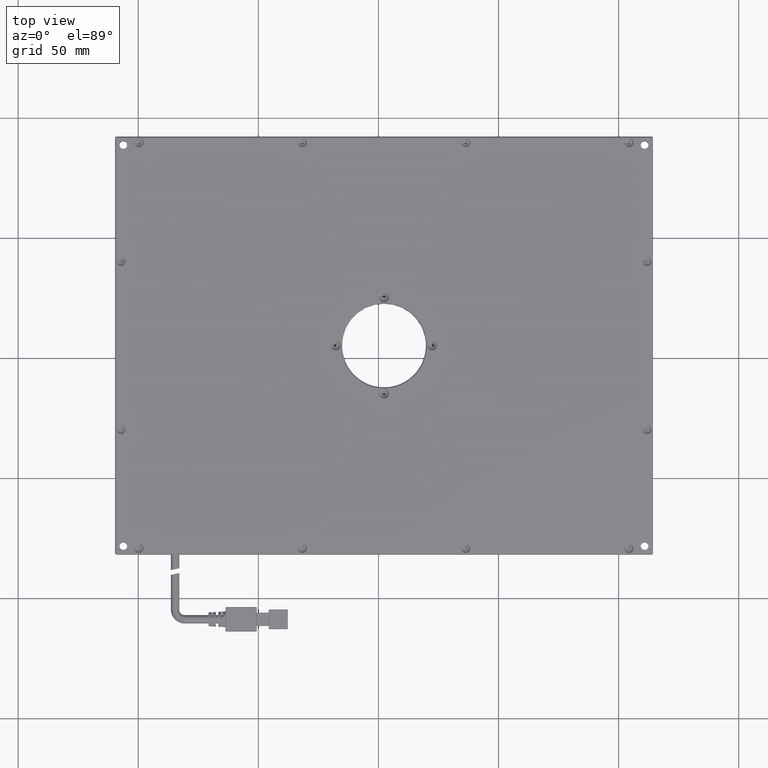
[diagram: clean part render]
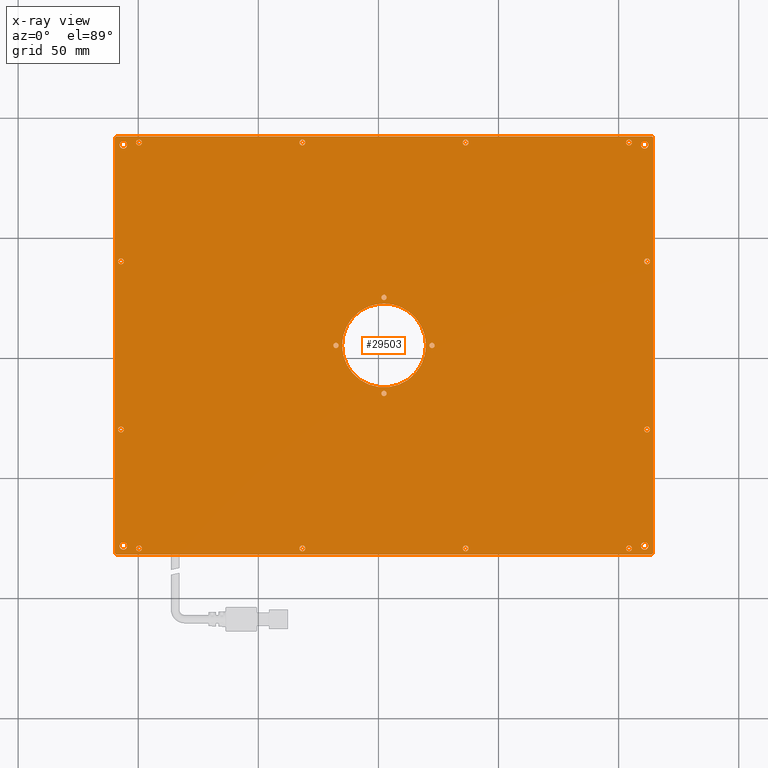
[diagram: x-ray — body ghosted, one internal face saturated and labeled with its STEP entity id]
A machine part, top view, then the same camera in x-ray: the body is ghosted and one INTERNAL B-rep face — a face not visible from any outside direction — is saturated and labeled: STEP entity #29503.
In plain terms, the highlighted planar face has unit normal (0, 0, -1).
Its self-contained STEP definition (entity closure, byte-faithful):
#163 = VERTEX_POINT ( 'NONE', #26431 ) ;
#206 = CIRCLE ( 'NONE', #48493, 1.099999999999999400 ) ;
#390 = DIRECTION ( 'NONE',  ( 1.000000000000000000, 0.0000000000000000000, 0.0000000000000000000 ) ) ;
#397 = AXIS2_PLACEMENT_3D ( 'NONE', #48713, #29498, #25098 ) ;
#575 = CARTESIAN_POINT ( 'NONE',  ( 113.8229746835443400, -81.80746835443041200, 3.749999999999999600 ) ) ;
#887 = EDGE_CURVE ( 'NONE', #19909, #38923, #32694, .T. ) ;
#960 = CARTESIAN_POINT ( 'NONE',  ( 103.1229746835443400, -79.30746835443037000, 3.750000000000000000 ) ) ;
#962 = CIRCLE ( 'NONE', #28000, 1.199999999999992600 ) ;
#1033 = EDGE_CURVE ( 'NONE', #40741, #43059, #33302, .T. ) ;
#1050 = VERTEX_POINT ( 'NONE', #21515 ) ;
#1183 = DIRECTION ( 'NONE',  ( -0.0000000000000000000, -0.0000000000000000000, 1.000000000000000000 ) ) ;
#1359 = CARTESIAN_POINT ( 'NONE',  ( 104.3229746835443300, -79.30746835443037000, 3.750000000000000000 ) ) ;
#1389 = DIRECTION ( 'NONE',  ( -0.0000000000000000000, -0.0000000000000000000, 1.000000000000000000 ) ) ;
#1589 = EDGE_LOOP ( 'NONE', ( #21733, #48932 ) ) ;
#1613 = CIRCLE ( 'NONE', #22118, 1.600000000000004100 ) ;
#1666 = EDGE_CURVE ( 'NONE', #5929, #17428, #49491, .T. ) ;
#1931 = EDGE_CURVE ( 'NONE', #27726, #45954, #962, .T. ) ;
#1974 = ORIENTED_EDGE ( 'NONE', *, *, #44714, .T. ) ;
#1994 = FACE_BOUND ( 'NONE', #25932, .T. ) ;
#1995 = CIRCLE ( 'NONE', #46303, 1.100000000000000300 ) ;
#2058 = DIRECTION ( 'NONE',  ( 1.000000000000000000, 0.0000000000000000000, 0.0000000000000000000 ) ) ;
#2193 = VERTEX_POINT ( 'NONE', #41320 ) ;
#2195 = ORIENTED_EDGE ( 'NONE', *, *, #33237, .T. ) ;
#2252 = CARTESIAN_POINT ( 'NONE',  ( 2.322974683544365400, 5.192531645569612700, 3.750000000000000000 ) ) ;
#2350 = CARTESIAN_POINT ( 'NONE',  ( -32.87702531645570000, 89.69253164556960200, 3.750000000000000000 ) ) ;
#2405 = ORIENTED_EDGE ( 'NONE', *, *, #4359, .T. ) ;
#2434 = LINE ( 'NONE', #41936, #31925 ) ;
#2563 = AXIS2_PLACEMENT_3D ( 'NONE', #14901, #22484, #22983 ) ;
#2993 = DIRECTION ( 'NONE',  ( 1.000000000000000000, 0.0000000000000000000, 0.0000000000000000000 ) ) ;
#3008 = CARTESIAN_POINT ( 'NONE',  ( 103.1229746835443300, 89.69253164556961600, 3.750000000000000000 ) ) ;
#3106 = EDGE_CURVE ( 'NONE', #34333, #16941, #31962, .T. ) ;
#3166 = DIRECTION ( 'NONE',  ( -0.0000000000000000000, -0.0000000000000000000, 1.000000000000000000 ) ) ;
#3233 = LINE ( 'NONE', #34661, #27262 ) ;
#3270 = AXIS2_PLACEMENT_3D ( 'NONE', #41819, #33556, #33708 ) ;
#3485 = VERTEX_POINT ( 'NONE', #41124 ) ;
#3565 = EDGE_LOOP ( 'NONE', ( #8888, #18016 ) ) ;
#3664 = VERTEX_POINT ( 'NONE', #10921 ) ;
#3721 = DIRECTION ( 'NONE',  ( 1.000000000000000000, 0.0000000000000000000, 0.0000000000000000000 ) ) ;
#3739 = CARTESIAN_POINT ( 'NONE',  ( 110.6229746835443100, 40.19253164556960200, 3.750000000000000000 ) ) ;
#3780 = AXIS2_PLACEMENT_3D ( 'NONE', #37957, #34385, #6799 ) ;
#3884 = EDGE_CURVE ( 'NONE', #32887, #42394, #13125, .T. ) ;
#4196 = DIRECTION ( 'NONE',  ( 1.000000000000000000, 0.0000000000000000000, 0.0000000000000000000 ) ) ;
#4359 = EDGE_CURVE ( 'NONE', #17428, #5929, #48655, .T. ) ;
#4415 = AXIS2_PLACEMENT_3D ( 'NONE', #17469, #21527, #44444 ) ;
#4421 = CARTESIAN_POINT ( 'NONE',  ( 105.5229746835443100, 89.69253164556961600, 3.750000000000000000 ) ) ;
#4699 = CARTESIAN_POINT ( 'NONE',  ( -106.1770253164556400, -78.30746835443039800, 3.750000000000000000 ) ) ;
#4711 = ORIENTED_EDGE ( 'NONE', *, *, #7439, .T. ) ;
#4735 = CARTESIAN_POINT ( 'NONE',  ( 111.8229746835443000, -29.80746835443040500, 3.750000000000000000 ) ) ;
#4752 = CARTESIAN_POINT ( 'NONE',  ( 110.8229746835443000, 88.69253164556958800, 3.750000000000000000 ) ) ;
#4934 = FACE_BOUND ( 'NONE', #1589, .T. ) ;
#5020 = DIRECTION ( 'NONE',  ( 1.000000000000000000, 0.0000000000000000000, 0.0000000000000000000 ) ) ;
#5172 = CARTESIAN_POINT ( 'NONE',  ( 3.422974683544323300, 25.19253164556961300, 3.750000000000000000 ) ) ;
#5285 = EDGE_CURVE ( 'NONE', #25036, #163, #1613, .T. ) ;
#5297 = EDGE_LOOP ( 'NONE', ( #35231, #35907 ) ) ;
#5401 = CARTESIAN_POINT ( 'NONE',  ( 111.8229746835443200, 40.19253164556960200, 3.750000000000000000 ) ) ;
#5462 = ORIENTED_EDGE ( 'NONE', *, *, #7531, .T. ) ;
#5540 = CIRCLE ( 'NONE', #33269, 1.600000000000004100 ) ;
#5547 = DIRECTION ( 'NONE',  ( 1.000000000000000000, 0.0000000000000000000, 0.0000000000000000000 ) ) ;
#5619 = VERTEX_POINT ( 'NONE', #26460 ) ;
#5929 = VERTEX_POINT ( 'NONE', #4421 ) ;
#5945 = CIRCLE ( 'NONE', #3780, 1.199999999999992600 ) ;
#5953 = AXIS2_PLACEMENT_3D ( 'NONE', #33732, #3166, #45878 ) ;
#6093 = ORIENTED_EDGE ( 'NONE', *, *, #47265, .T. ) ;
#6136 = VERTEX_POINT ( 'NONE', #20624 ) ;
#6380 = DIRECTION ( 'NONE',  ( -0.0000000000000000000, -0.0000000000000000000, 1.000000000000000000 ) ) ;
#6532 = VERTEX_POINT ( 'NONE', #48399 ) ;
#6596 = VERTEX_POINT ( 'NONE', #44341 ) ;
#6778 = DIRECTION ( 'NONE',  ( -0.0000000000000000000, -0.0000000000000000000, 1.000000000000000000 ) ) ;
#6799 = DIRECTION ( 'NONE',  ( 1.000000000000000000, 0.0000000000000000000, 0.0000000000000000000 ) ) ;
#6885 = EDGE_LOOP ( 'NONE', ( #42062, #33529 ) ) ;
#6915 = EDGE_CURVE ( 'NONE', #41964, #9405, #49402, .T. ) ;
#6941 = EDGE_CURVE ( 'NONE', #45954, #27726, #28877, .T. ) ;
#6998 = DIRECTION ( 'NONE',  ( 1.000000000000000000, 0.0000000000000000000, 0.0000000000000000000 ) ) ;
#7080 = DIRECTION ( 'NONE',  ( -0.7071067811865672200, 0.7071067811865279200, 0.0000000000000000000 ) ) ;
#7213 = CARTESIAN_POINT ( 'NONE',  ( -99.67702531645571200, 89.69253164556958800, 3.750000000000000000 ) ) ;
#7303 = LINE ( 'NONE', #45489, #48906 ) ;
#7330 = AXIS2_PLACEMENT_3D ( 'NONE', #47289, #1183, #24356 ) ;
#7350 = EDGE_LOOP ( 'NONE', ( #18623, #25750 ) ) ;
#7437 = ORIENTED_EDGE ( 'NONE', *, *, #11746, .T. ) ;
#7439 = EDGE_CURVE ( 'NONE', #6596, #6136, #3233, .T. ) ;
#7531 = EDGE_CURVE ( 'NONE', #29559, #28022, #47152, .T. ) ;
#7588 = CIRCLE ( 'NONE', #31833, 1.199999999999992600 ) ;
#7654 = CIRCLE ( 'NONE', #47383, 1.099999999999999400 ) ;
#7841 = EDGE_CURVE ( 'NONE', #30299, #23083, #5540, .T. ) ;
#7846 = VERTEX_POINT ( 'NONE', #45558 ) ;
#7903 = FACE_BOUND ( 'NONE', #8839, .T. ) ;
#7928 = AXIS2_PLACEMENT_3D ( 'NONE', #1359, #9691, #40084 ) ;
#8012 = AXIS2_PLACEMENT_3D ( 'NONE', #19991, #9516, #32615 ) ;
#8031 = AXIS2_PLACEMENT_3D ( 'NONE', #43029, #28008, #16414 ) ;
#8839 = EDGE_LOOP ( 'NONE', ( #19128, #40571 ) ) ;
#8888 = ORIENTED_EDGE ( 'NONE', *, *, #887, .T. ) ;
#8969 = CARTESIAN_POINT ( 'NONE',  ( -107.1770253164556700, 40.19253164556960200, 3.750000000000000000 ) ) ;
#9007 = CIRCLE ( 'NONE', #17657, 1.099999999999999400 ) ;
#9222 = DIRECTION ( 'NONE',  ( 1.000000000000000000, 0.0000000000000000000, 0.0000000000000000000 ) ) ;
#9245 = VERTEX_POINT ( 'NONE', #48398 ) ;
#9405 = VERTEX_POINT ( 'NONE', #38122 ) ;
#9477 = VERTEX_POINT ( 'NONE', #42319 ) ;
#9501 = CARTESIAN_POINT ( 'NONE',  ( -109.6770253164556800, 91.69253164556951700, 3.750000000000000000 ) ) ;
#9516 = DIRECTION ( 'NONE',  ( 0.0000000000000000000, 0.0000000000000000000, 1.000000000000000000 ) ) ;
#9664 = CARTESIAN_POINT ( 'NONE',  ( 1.222974683544324300, -14.80746835443041600, 3.750000000000000000 ) ) ;
#9691 = DIRECTION ( 'NONE',  ( -0.0000000000000000000, -0.0000000000000000000, 1.000000000000000000 ) ) ;
#9878 = DIRECTION ( 'NONE',  ( -0.0000000000000000000, -0.0000000000000000000, 1.000000000000000000 ) ) ;
#9887 = CARTESIAN_POINT ( 'NONE',  ( -30.47702531645569800, -79.30746835443038400, 3.750000000000000000 ) ) ;
#9950 = EDGE_CURVE ( 'NONE', #25500, #46503, #49858, .T. ) ;
#10296 = CARTESIAN_POINT ( 'NONE',  ( 114.3229746835443400, 5.192531645569598500, 3.750000000000000000 ) ) ;
#10365 = ORIENTED_EDGE ( 'NONE', *, *, #39117, .T. ) ;
#10408 = VERTEX_POINT ( 'NONE', #29221 ) ;
#10651 = CARTESIAN_POINT ( 'NONE',  ( 19.82297468354437000, 5.192531645569614400, 3.750000000000000000 ) ) ;
#10685 = CARTESIAN_POINT ( 'NONE',  ( -106.1770253164556400, -78.30746835443039800, 3.750000000000000000 ) ) ;
#10921 = CARTESIAN_POINT ( 'NONE',  ( 1.222974683544324300, 25.19253164556961300, 3.750000000000000000 ) ) ;
#10960 = FACE_BOUND ( 'NONE', #5297, .T. ) ;
#11012 = VERTEX_POINT ( 'NONE', #10651 ) ;
#11414 = VERTEX_POINT ( 'NONE', #575 ) ;
#11436 = CIRCLE ( 'NONE', #40985, 1.600000000000004100 ) ;
#11592 = AXIS2_PLACEMENT_3D ( 'NONE', #32983, #9878, #13775 ) ;
#11647 = AXIS2_PLACEMENT_3D ( 'NONE', #31028, #39125, #11811 ) ;
#11686 = DIRECTION ( 'NONE',  ( -0.0000000000000000000, -0.0000000000000000000, 1.000000000000000000 ) ) ;
#11746 = EDGE_CURVE ( 'NONE', #26974, #9477, #2434, .T. ) ;
#11811 = DIRECTION ( 'NONE',  ( 1.000000000000000000, 0.0000000000000000000, 0.0000000000000000000 ) ) ;
#11935 = DIRECTION ( 'NONE',  ( 1.000000000000000000, 0.0000000000000000000, 0.0000000000000000000 ) ) ;
#11955 = CARTESIAN_POINT ( 'NONE',  ( -109.1770253164556700, 92.19253164556960200, 3.749999999999999600 ) ) ;
#12011 = AXIS2_PLACEMENT_3D ( 'NONE', #17777, #29236, #21319 ) ;
#12215 = DIRECTION ( 'NONE',  ( -0.0000000000000000000, -0.0000000000000000000, 1.000000000000000000 ) ) ;
#12368 = EDGE_LOOP ( 'NONE', ( #15325, #2405 ) ) ;
#12482 = CARTESIAN_POINT ( 'NONE',  ( -105.9770253164556700, 40.19253164556960200, 3.750000000000000000 ) ) ;
#12580 = DIRECTION ( 'NONE',  ( 0.7071067811864985000, 0.7071067811865965300, 0.0000000000000000000 ) ) ;
#12585 = DIRECTION ( 'NONE',  ( 1.000000000000000000, 0.0000000000000000000, 0.0000000000000000000 ) ) ;
#12828 = CARTESIAN_POINT ( 'NONE',  ( -100.8770253164556900, -79.30746835443039800, 3.750000000000000000 ) ) ;
#13125 = CIRCLE ( 'NONE', #26528, 1.199999999999992600 ) ;
#13324 = AXIS2_PLACEMENT_3D ( 'NONE', #40524, #13694, #29357 ) ;
#13694 = DIRECTION ( 'NONE',  ( -0.0000000000000000000, -0.0000000000000000000, 1.000000000000000000 ) ) ;
#13775 = DIRECTION ( 'NONE',  ( 1.000000000000000000, 0.0000000000000000000, 0.0000000000000000000 ) ) ;
#13819 = CARTESIAN_POINT ( 'NONE',  ( -107.7770253164556500, -78.30746835443039800, 3.750000000000000000 ) ) ;
#13877 = EDGE_CURVE ( 'NONE', #17910, #5619, #35819, .T. ) ;
#13963 = FACE_BOUND ( 'NONE', #19888, .T. ) ;
#13978 = CARTESIAN_POINT ( 'NONE',  ( -30.47702531645571300, 89.69253164556960200, 3.750000000000000000 ) ) ;
#14001 = CIRCLE ( 'NONE', #21776, 1.099999999999999400 ) ;
#14021 = CARTESIAN_POINT ( 'NONE',  ( 105.5229746835443200, -79.30746835443037000, 3.750000000000000000 ) ) ;
#14124 = CIRCLE ( 'NONE', #3270, 1.100000000000000300 ) ;
#14268 = CARTESIAN_POINT ( 'NONE',  ( 114.3229746835443400, 91.69253164556960200, 3.749999999999999600 ) ) ;
#14273 = CARTESIAN_POINT ( 'NONE',  ( 109.2229746835443100, 88.69253164556958800, 3.750000000000000000 ) ) ;
#14536 = DIRECTION ( 'NONE',  ( 0.0000000000000000000, 0.0000000000000000000, -1.000000000000000000 ) ) ;
#14597 = ORIENTED_EDGE ( 'NONE', *, *, #40716, .T. ) ;
#14607 = FACE_BOUND ( 'NONE', #3565, .T. ) ;
#14699 = CARTESIAN_POINT ( 'NONE',  ( 110.6229746835443000, -29.80746835443040500, 3.750000000000000000 ) ) ;
#14901 = CARTESIAN_POINT ( 'NONE',  ( 104.3229746835443200, 89.69253164556961600, 3.750000000000000000 ) ) ;
#14912 = DIRECTION ( 'NONE',  ( -0.0000000000000000000, -0.0000000000000000000, 1.000000000000000000 ) ) ;
#15013 = ORIENTED_EDGE ( 'NONE', *, *, #3884, .T. ) ;
#15089 = CARTESIAN_POINT ( 'NONE',  ( -106.1770253164556600, 88.69253164556958800, 3.750000000000000000 ) ) ;
#15252 = DIRECTION ( 'NONE',  ( 1.000000000000000000, 0.0000000000000000000, 0.0000000000000000000 ) ) ;
#15325 = ORIENTED_EDGE ( 'NONE', *, *, #1666, .T. ) ;
#16027 = VECTOR ( 'NONE', #30746, 1000.000000000000000 ) ;
#16393 = CIRCLE ( 'NONE', #13324, 1.199999999999992600 ) ;
#16414 = DIRECTION ( 'NONE',  ( 1.000000000000000000, 0.0000000000000000000, 0.0000000000000000000 ) ) ;
#16941 = VERTEX_POINT ( 'NONE', #30453 ) ;
#17428 = VERTEX_POINT ( 'NONE', #3008 ) ;
#17469 = CARTESIAN_POINT ( 'NONE',  ( 36.32297468354429500, 89.69253164556960200, 3.750000000000000000 ) ) ;
#17657 = AXIS2_PLACEMENT_3D ( 'NONE', #41546, #37333, #37499 ) ;
#17689 = DIRECTION ( 'NONE',  ( 1.000000000000000000, 0.0000000000000000000, 0.0000000000000000000 ) ) ;
#17777 = CARTESIAN_POINT ( 'NONE',  ( -107.1770253164556600, -29.80746835443040500, 3.750000000000000000 ) ) ;
#17910 = VERTEX_POINT ( 'NONE', #18250 ) ;
#17917 = CARTESIAN_POINT ( 'NONE',  ( 22.32297468354433800, 5.192531645569809000, 3.750000000000000000 ) ) ;
#18016 = ORIENTED_EDGE ( 'NONE', *, *, #46624, .T. ) ;
#18033 = DIRECTION ( 'NONE',  ( -0.0000000000000000000, -0.0000000000000000000, 1.000000000000000000 ) ) ;
#18184 = FACE_BOUND ( 'NONE', #45949, .T. ) ;
#18231 = DIRECTION ( 'NONE',  ( 1.000000000000000000, 0.0000000000000000000, 0.0000000000000000000 ) ) ;
#18250 = CARTESIAN_POINT ( 'NONE',  ( 35.12297468354430700, 89.69253164556960200, 3.750000000000000000 ) ) ;
#18474 = ORIENTED_EDGE ( 'NONE', *, *, #43853, .T. ) ;
#18531 = AXIS2_PLACEMENT_3D ( 'NONE', #8969, #28526, #5020 ) ;
#18546 = AXIS2_PLACEMENT_3D ( 'NONE', #24920, #18033, #17689 ) ;
#18623 = ORIENTED_EDGE ( 'NONE', *, *, #6915, .T. ) ;
#18881 = CARTESIAN_POINT ( 'NONE',  ( -107.7770253164556600, 88.69253164556958800, 3.750000000000000000 ) ) ;
#18969 = CARTESIAN_POINT ( 'NONE',  ( 2.322974683544323700, -81.80746835443041200, 3.750000000000000000 ) ) ;
#19081 = DIRECTION ( 'NONE',  ( -0.0000000000000000000, -0.0000000000000000000, 1.000000000000000000 ) ) ;
#19128 = ORIENTED_EDGE ( 'NONE', *, *, #3106, .T. ) ;
#19543 = DIRECTION ( 'NONE',  ( -0.0000000000000000000, -0.0000000000000000000, 1.000000000000000000 ) ) ;
#19555 = CARTESIAN_POINT ( 'NONE',  ( 110.8229746835442900, -78.30746835443039800, 3.750000000000000000 ) ) ;
#19710 = AXIS2_PLACEMENT_3D ( 'NONE', #2252, #20868, #20699 ) ;
#19845 = DIRECTION ( 'NONE',  ( -0.0000000000000000000, -0.0000000000000000000, 1.000000000000000000 ) ) ;
#19888 = EDGE_LOOP ( 'NONE', ( #33212, #37264 ) ) ;
#19909 = VERTEX_POINT ( 'NONE', #14021 ) ;
#19951 = ORIENTED_EDGE ( 'NONE', *, *, #35033, .T. ) ;
#19991 = CARTESIAN_POINT ( 'NONE',  ( 2.322974683544365400, 5.192531645569612700, 3.750000000000000000 ) ) ;
#20013 = FACE_BOUND ( 'NONE', #32932, .T. ) ;
#20320 = CIRCLE ( 'NONE', #11592, 1.199999999999992600 ) ;
#20418 = CARTESIAN_POINT ( 'NONE',  ( -18.77702531645569200, 5.192531645569528300, 3.750000000000000000 ) ) ;
#20481 = DIRECTION ( 'NONE',  ( -0.7071067811865671100, -0.7071067811865279200, 0.0000000000000000000 ) ) ;
#20536 = CARTESIAN_POINT ( 'NONE',  ( 36.32297468354430900, -79.30746835443038400, 3.750000000000000000 ) ) ;
#20563 = FACE_BOUND ( 'NONE', #29105, .T. ) ;
#20624 = CARTESIAN_POINT ( 'NONE',  ( -109.6770253164556700, 91.69253164556953100, 3.749999999999999600 ) ) ;
#20699 = DIRECTION ( 'NONE',  ( -1.000000000000000000, 0.0000000000000000000, 0.0000000000000000000 ) ) ;
#20731 = DIRECTION ( 'NONE',  ( -0.0000000000000000000, -0.0000000000000000000, 1.000000000000000000 ) ) ;
#20863 = LINE ( 'NONE', #27221, #41975 ) ;
#20868 = DIRECTION ( 'NONE',  ( 0.0000000000000000000, 0.0000000000000000000, 1.000000000000000000 ) ) ;
#20950 = EDGE_CURVE ( 'NONE', #27391, #37448, #48840, .T. ) ;
#21148 = EDGE_CURVE ( 'NONE', #47424, #9245, #9007, .T. ) ;
#21184 = CARTESIAN_POINT ( 'NONE',  ( 2.322974683544323700, 25.19253164556961300, 3.750000000000000000 ) ) ;
#21232 = CIRCLE ( 'NONE', #19710, 17.50000000000000400 ) ;
#21319 = DIRECTION ( 'NONE',  ( 1.000000000000000000, 0.0000000000000000000, 0.0000000000000000000 ) ) ;
#21515 = CARTESIAN_POINT ( 'NONE',  ( 114.3229746835443400, -81.30746835443042600, 3.749999999999999600 ) ) ;
#21527 = DIRECTION ( 'NONE',  ( -0.0000000000000000000, -0.0000000000000000000, 1.000000000000000000 ) ) ;
#21570 = CARTESIAN_POINT ( 'NONE',  ( -32.87702531645568600, -79.30746835443038400, 3.750000000000000000 ) ) ;
#21631 = ORIENTED_EDGE ( 'NONE', *, *, #46117, .T. ) ;
#21707 = CARTESIAN_POINT ( 'NONE',  ( 113.0229746835443100, 40.19253164556960200, 3.750000000000000000 ) ) ;
#21733 = ORIENTED_EDGE ( 'NONE', *, *, #35365, .T. ) ;
#21776 = AXIS2_PLACEMENT_3D ( 'NONE', #22616, #19081, #41510 ) ;
#22032 = EDGE_LOOP ( 'NONE', ( #10365, #6093, #47061, #29596, #4711, #19951, #7437, #36068 ) ) ;
#22118 = AXIS2_PLACEMENT_3D ( 'NONE', #15089, #49790, #4196 ) ;
#22227 = DIRECTION ( 'NONE',  ( -0.0000000000000000000, -0.0000000000000000000, 1.000000000000000000 ) ) ;
#22431 = FACE_BOUND ( 'NONE', #45554, .T. ) ;
#22440 = EDGE_CURVE ( 'NONE', #2193, #26315, #40051, .T. ) ;
#22484 = DIRECTION ( 'NONE',  ( -0.0000000000000000000, -0.0000000000000000000, 1.000000000000000000 ) ) ;
#22616 = CARTESIAN_POINT ( 'NONE',  ( 2.322974683544323700, -14.80746835443041600, 3.750000000000000000 ) ) ;
#22820 = VECTOR ( 'NONE', #12580, 1000.000000000000000 ) ;
#22897 = ORIENTED_EDGE ( 'NONE', *, *, #30249, .T. ) ;
#22983 = DIRECTION ( 'NONE',  ( 1.000000000000000000, 0.0000000000000000000, 0.0000000000000000000 ) ) ;
#23021 = FACE_BOUND ( 'NONE', #26818, .T. ) ;
#23078 = CIRCLE ( 'NONE', #18531, 1.199999999999992600 ) ;
#23083 = VERTEX_POINT ( 'NONE', #13819 ) ;
#23276 = EDGE_CURVE ( 'NONE', #35818, #6596, #7303, .T. ) ;
#23357 = CARTESIAN_POINT ( 'NONE',  ( 113.8229746835442900, 92.19253164556963000, 3.750000000000000000 ) ) ;
#23457 = LINE ( 'NONE', #23357, #36102 ) ;
#23668 = DIRECTION ( 'NONE',  ( -0.0000000000000000000, -0.0000000000000000000, 1.000000000000000000 ) ) ;
#23817 = CIRCLE ( 'NONE', #8012, 17.50000000000000400 ) ;
#23914 = AXIS2_PLACEMENT_3D ( 'NONE', #7213, #49353, #49517 ) ;
#24204 = FACE_BOUND ( 'NONE', #42834, .T. ) ;
#24205 = CIRCLE ( 'NONE', #5953, 1.199999999999992600 ) ;
#24277 = EDGE_CURVE ( 'NONE', #16941, #34333, #1995, .T. ) ;
#24345 = EDGE_CURVE ( 'NONE', #7846, #24744, #24205, .T. ) ;
#24356 = DIRECTION ( 'NONE',  ( 1.000000000000000000, 0.0000000000000000000, 0.0000000000000000000 ) ) ;
#24368 = CARTESIAN_POINT ( 'NONE',  ( -106.1770253164556600, 88.69253164556958800, 3.750000000000000000 ) ) ;
#24585 = AXIS2_PLACEMENT_3D ( 'NONE', #47669, #32020, #47506 ) ;
#24663 = EDGE_LOOP ( 'NONE', ( #43811, #22897 ) ) ;
#24744 = VERTEX_POINT ( 'NONE', #31208 ) ;
#24883 = VERTEX_POINT ( 'NONE', #21570 ) ;
#24904 = EDGE_CURVE ( 'NONE', #42122, #24883, #29645, .T. ) ;
#24920 = CARTESIAN_POINT ( 'NONE',  ( -31.67702531645569400, -79.30746835443038400, 3.750000000000000000 ) ) ;
#25036 = VERTEX_POINT ( 'NONE', #18881 ) ;
#25095 = VECTOR ( 'NONE', #41006, 1000.000000000000000 ) ;
#25098 = DIRECTION ( 'NONE',  ( 1.000000000000000000, 0.0000000000000000000, 0.0000000000000000000 ) ) ;
#25408 = FACE_BOUND ( 'NONE', #6885, .T. ) ;
#25500 = VERTEX_POINT ( 'NONE', #14273 ) ;
#25750 = ORIENTED_EDGE ( 'NONE', *, *, #44048, .T. ) ;
#25932 = EDGE_LOOP ( 'NONE', ( #15013, #21631 ) ) ;
#26029 = ORIENTED_EDGE ( 'NONE', *, *, #27215, .T. ) ;
#26234 = CIRCLE ( 'NONE', #45909, 1.199999999999992600 ) ;
#26315 = VERTEX_POINT ( 'NONE', #12828 ) ;
#26423 = AXIS2_PLACEMENT_3D ( 'NONE', #19555, #46180, #42150 ) ;
#26431 = CARTESIAN_POINT ( 'NONE',  ( -104.5770253164556600, 88.69253164556958800, 3.750000000000000000 ) ) ;
#26458 = AXIS2_PLACEMENT_3D ( 'NONE', #4735, #34995, #42764 ) ;
#26460 = CARTESIAN_POINT ( 'NONE',  ( 37.52297468354429100, 89.69253164556960200, 3.750000000000000000 ) ) ;
#26528 = AXIS2_PLACEMENT_3D ( 'NONE', #5401, #43924, #5547 ) ;
#26586 = AXIS2_PLACEMENT_3D ( 'NONE', #33243, #14536, #37458 ) ;
#26590 = ORIENTED_EDGE ( 'NONE', *, *, #26946, .T. ) ;
#26818 = EDGE_LOOP ( 'NONE', ( #33589, #48264 ) ) ;
#26946 = EDGE_CURVE ( 'NONE', #37448, #27391, #31899, .T. ) ;
#26974 = VERTEX_POINT ( 'NONE', #11955 ) ;
#27167 = EDGE_CURVE ( 'NONE', #29319, #3664, #7654, .T. ) ;
#27181 = AXIS2_PLACEMENT_3D ( 'NONE', #20536, #1389, #9222 ) ;
#27215 = EDGE_CURVE ( 'NONE', #28022, #29559, #20320, .T. ) ;
#27221 = CARTESIAN_POINT ( 'NONE',  ( 114.3229746835443400, -81.30746835443044100, 3.750000000000000000 ) ) ;
#27262 = VECTOR ( 'NONE', #34830, 1000.000000000000000 ) ;
#27391 = VERTEX_POINT ( 'NONE', #2350 ) ;
#27726 = VERTEX_POINT ( 'NONE', #31392 ) ;
#27825 = FACE_OUTER_BOUND ( 'NONE', #22032, .T. ) ;
#28000 = AXIS2_PLACEMENT_3D ( 'NONE', #35764, #20731, #43180 ) ;
#28008 = DIRECTION ( 'NONE',  ( -0.0000000000000000000, -0.0000000000000000000, 1.000000000000000000 ) ) ;
#28022 = VERTEX_POINT ( 'NONE', #14699 ) ;
#28357 = CARTESIAN_POINT ( 'NONE',  ( -104.5770253164556500, -78.30746835443039800, 3.750000000000000000 ) ) ;
#28447 = CARTESIAN_POINT ( 'NONE',  ( -98.47702531645572300, 89.69253164556958800, 3.750000000000000000 ) ) ;
#28526 = DIRECTION ( 'NONE',  ( -0.0000000000000000000, -0.0000000000000000000, 1.000000000000000000 ) ) ;
#28877 = CIRCLE ( 'NONE', #27181, 1.199999999999992600 ) ;
#28929 = EDGE_LOOP ( 'NONE', ( #26590, #39357 ) ) ;
#29029 = ORIENTED_EDGE ( 'NONE', *, *, #48204, .T. ) ;
#29041 = FACE_BOUND ( 'NONE', #12368, .T. ) ;
#29105 = EDGE_LOOP ( 'NONE', ( #29029, #33805 ) ) ;
#29221 = CARTESIAN_POINT ( 'NONE',  ( 109.2229746835442900, -78.30746835443039800, 3.750000000000000000 ) ) ;
#29236 = DIRECTION ( 'NONE',  ( -0.0000000000000000000, -0.0000000000000000000, 1.000000000000000000 ) ) ;
#29319 = VERTEX_POINT ( 'NONE', #5172 ) ;
#29357 = DIRECTION ( 'NONE',  ( 1.000000000000000000, 0.0000000000000000000, 0.0000000000000000000 ) ) ;
#29498 = DIRECTION ( 'NONE',  ( -0.0000000000000000000, -0.0000000000000000000, 1.000000000000000000 ) ) ;
#29503 = ADVANCED_FACE ( 'NONE', ( #29041, #20013, #42931, #10960, #48342, #24204, #45933, #13963, #20563, #29634, #27825, #41118, #25408, #14607, #23021, #32660, #22431, #1994, #18184, #32610, #4934, #7903 ), #45019, .T. ) ;
#29559 = VERTEX_POINT ( 'NONE', #37112 ) ;
#29596 = ORIENTED_EDGE ( 'NONE', *, *, #23276, .T. ) ;
#29634 = FACE_BOUND ( 'NONE', #24663, .T. ) ;
#29645 = CIRCLE ( 'NONE', #18546, 1.199999999999992600 ) ;
#29708 = DIRECTION ( 'NONE',  ( -0.0000000000000000000, -0.0000000000000000000, 1.000000000000000000 ) ) ;
#29789 = CIRCLE ( 'NONE', #26423, 1.600000000000004100 ) ;
#29846 = CARTESIAN_POINT ( 'NONE',  ( 104.3229746835443300, -79.30746835443037000, 3.750000000000000000 ) ) ;
#30109 = EDGE_CURVE ( 'NONE', #9477, #49119, #23457, .T. ) ;
#30249 = EDGE_CURVE ( 'NONE', #23083, #30299, #46908, .T. ) ;
#30299 = VERTEX_POINT ( 'NONE', #28357 ) ;
#30302 = DIRECTION ( 'NONE',  ( 1.000000000000000000, 0.0000000000000000000, 0.0000000000000000000 ) ) ;
#30453 = CARTESIAN_POINT ( 'NONE',  ( 21.22297468354433600, 5.192531645569809000, 3.750000000000000000 ) ) ;
#30544 = AXIS2_PLACEMENT_3D ( 'NONE', #41259, #37022, #32970 ) ;
#30746 = DIRECTION ( 'NONE',  ( -1.000000000000000000, 0.0000000000000000000, -0.0000000000000000000 ) ) ;
#30891 = ORIENTED_EDGE ( 'NONE', *, *, #1033, .T. ) ;
#30936 = AXIS2_PLACEMENT_3D ( 'NONE', #42633, #19543, #390 ) ;
#31028 = CARTESIAN_POINT ( 'NONE',  ( 110.8229746835442900, -78.30746835443039800, 3.750000000000000000 ) ) ;
#31208 = CARTESIAN_POINT ( 'NONE',  ( -108.3770253164556400, -29.80746835443040500, 3.750000000000000000 ) ) ;
#31392 = CARTESIAN_POINT ( 'NONE',  ( 37.52297468354430500, -79.30746835443038400, 3.750000000000000000 ) ) ;
#31467 = CIRCLE ( 'NONE', #11647, 1.600000000000004100 ) ;
#31833 = AXIS2_PLACEMENT_3D ( 'NONE', #34368, #41647, #18231 ) ;
#31899 = CIRCLE ( 'NONE', #30936, 1.199999999999992600 ) ;
#31925 = VECTOR ( 'NONE', #33812, 1000.000000000000000 ) ;
#31962 = CIRCLE ( 'NONE', #397, 1.100000000000000300 ) ;
#32020 = DIRECTION ( 'NONE',  ( -0.0000000000000000000, -0.0000000000000000000, 1.000000000000000000 ) ) ;
#32106 = AXIS2_PLACEMENT_3D ( 'NONE', #24368, #19845, #39562 ) ;
#32610 = FACE_BOUND ( 'NONE', #47352, .T. ) ;
#32615 = DIRECTION ( 'NONE',  ( -1.000000000000000000, 0.0000000000000000000, 0.0000000000000000000 ) ) ;
#32660 = FACE_BOUND ( 'NONE', #38599, .T. ) ;
#32694 = CIRCLE ( 'NONE', #7928, 1.199999999999992600 ) ;
#32793 = ORIENTED_EDGE ( 'NONE', *, *, #22440, .T. ) ;
#32885 = LINE ( 'NONE', #18969, #16027 ) ;
#32887 = VERTEX_POINT ( 'NONE', #21707 ) ;
#32932 = EDGE_LOOP ( 'NONE', ( #48729, #33850 ) ) ;
#32970 = DIRECTION ( 'NONE',  ( 1.000000000000000000, 0.0000000000000000000, 0.0000000000000000000 ) ) ;
#32983 = CARTESIAN_POINT ( 'NONE',  ( 111.8229746835443000, -29.80746835443040500, 3.750000000000000000 ) ) ;
#33212 = ORIENTED_EDGE ( 'NONE', *, *, #38260, .T. ) ;
#33237 = EDGE_CURVE ( 'NONE', #11012, #3485, #23817, .T. ) ;
#33243 = CARTESIAN_POINT ( 'NONE',  ( 2.322974683544323700, 5.192531645569598500, 3.750000000000000000 ) ) ;
#33269 = AXIS2_PLACEMENT_3D ( 'NONE', #10685, #14912, #6998 ) ;
#33302 = CIRCLE ( 'NONE', #30544, 1.100000000000000300 ) ;
#33529 = ORIENTED_EDGE ( 'NONE', *, *, #6941, .T. ) ;
#33556 = DIRECTION ( 'NONE',  ( -0.0000000000000000000, -0.0000000000000000000, 1.000000000000000000 ) ) ;
#33589 = ORIENTED_EDGE ( 'NONE', *, *, #24345, .T. ) ;
#33708 = DIRECTION ( 'NONE',  ( 1.000000000000000000, 0.0000000000000000000, 0.0000000000000000000 ) ) ;
#33732 = CARTESIAN_POINT ( 'NONE',  ( -107.1770253164556600, -29.80746835443040500, 3.750000000000000000 ) ) ;
#33805 = ORIENTED_EDGE ( 'NONE', *, *, #34095, .T. ) ;
#33812 = DIRECTION ( 'NONE',  ( 1.000000000000000000, -0.0000000000000000000, 0.0000000000000000000 ) ) ;
#33850 = ORIENTED_EDGE ( 'NONE', *, *, #13877, .T. ) ;
#34095 = EDGE_CURVE ( 'NONE', #10408, #47156, #31467, .T. ) ;
#34333 = VERTEX_POINT ( 'NONE', #47511 ) ;
#34368 = CARTESIAN_POINT ( 'NONE',  ( -107.1770253164556700, 40.19253164556960200, 3.750000000000000000 ) ) ;
#34385 = DIRECTION ( 'NONE',  ( -0.0000000000000000000, -0.0000000000000000000, 1.000000000000000000 ) ) ;
#34490 = ORIENTED_EDGE ( 'NONE', *, *, #40547, .T. ) ;
#34661 = CARTESIAN_POINT ( 'NONE',  ( -109.6770253164556700, 5.192531645569598500, 3.750000000000000000 ) ) ;
#34830 = DIRECTION ( 'NONE',  ( 0.0000000000000000000, 1.000000000000000000, 0.0000000000000000000 ) ) ;
#34961 = DIRECTION ( 'NONE',  ( 1.000000000000000000, 0.0000000000000000000, 0.0000000000000000000 ) ) ;
#34968 = DIRECTION ( 'NONE',  ( 0.7071067811865672200, -0.7071067811865279200, 0.0000000000000000000 ) ) ;
#34995 = DIRECTION ( 'NONE',  ( -0.0000000000000000000, -0.0000000000000000000, 1.000000000000000000 ) ) ;
#35033 = EDGE_CURVE ( 'NONE', #6136, #26974, #36097, .T. ) ;
#35099 = EDGE_CURVE ( 'NONE', #24744, #7846, #39694, .T. ) ;
#35231 = ORIENTED_EDGE ( 'NONE', *, *, #24904, .T. ) ;
#35342 = DIRECTION ( 'NONE',  ( -0.0000000000000000000, -0.0000000000000000000, 1.000000000000000000 ) ) ;
#35365 = EDGE_CURVE ( 'NONE', #9245, #47424, #14001, .T. ) ;
#35764 = CARTESIAN_POINT ( 'NONE',  ( 36.32297468354430900, -79.30746835443038400, 3.750000000000000000 ) ) ;
#35818 = VERTEX_POINT ( 'NONE', #44465 ) ;
#35819 = CIRCLE ( 'NONE', #4415, 1.199999999999992600 ) ;
#35823 = ORIENTED_EDGE ( 'NONE', *, *, #48055, .T. ) ;
#35907 = ORIENTED_EDGE ( 'NONE', *, *, #39875, .T. ) ;
#36068 = ORIENTED_EDGE ( 'NONE', *, *, #30109, .T. ) ;
#36097 = LINE ( 'NONE', #9501, #22820 ) ;
#36102 = VECTOR ( 'NONE', #34968, 1000.000000000000000 ) ;
#37022 = DIRECTION ( 'NONE',  ( -0.0000000000000000000, -0.0000000000000000000, 1.000000000000000000 ) ) ;
#37112 = CARTESIAN_POINT ( 'NONE',  ( 113.0229746835442900, -29.80746835443040500, 3.750000000000000000 ) ) ;
#37247 = ORIENTED_EDGE ( 'NONE', *, *, #46606, .T. ) ;
#37264 = ORIENTED_EDGE ( 'NONE', *, *, #9950, .T. ) ;
#37274 = VERTEX_POINT ( 'NONE', #12482 ) ;
#37311 = CIRCLE ( 'NONE', #32106, 1.600000000000004100 ) ;
#37333 = DIRECTION ( 'NONE',  ( -0.0000000000000000000, -0.0000000000000000000, 1.000000000000000000 ) ) ;
#37448 = VERTEX_POINT ( 'NONE', #13978 ) ;
#37458 = DIRECTION ( 'NONE',  ( -1.000000000000000000, 0.0000000000000000000, -0.0000000000000000000 ) ) ;
#37499 = DIRECTION ( 'NONE',  ( 1.000000000000000000, 0.0000000000000000000, 0.0000000000000000000 ) ) ;
#37549 = AXIS2_PLACEMENT_3D ( 'NONE', #42887, #23668, #3721 ) ;
#37610 = DIRECTION ( 'NONE',  ( 1.000000000000000000, 0.0000000000000000000, 0.0000000000000000000 ) ) ;
#37810 = LINE ( 'NONE', #10296, #25095 ) ;
#37905 = AXIS2_PLACEMENT_3D ( 'NONE', #4699, #12215, #39196 ) ;
#37957 = CARTESIAN_POINT ( 'NONE',  ( 111.8229746835443200, 40.19253164556960200, 3.750000000000000000 ) ) ;
#38122 = CARTESIAN_POINT ( 'NONE',  ( -100.8770253164557000, 89.69253164556958800, 3.750000000000000000 ) ) ;
#38260 = EDGE_CURVE ( 'NONE', #46503, #25500, #11436, .T. ) ;
#38542 = ORIENTED_EDGE ( 'NONE', *, *, #27167, .T. ) ;
#38599 = EDGE_LOOP ( 'NONE', ( #37247, #34490 ) ) ;
#38692 = CARTESIAN_POINT ( 'NONE',  ( -99.67702531645569800, -79.30746835443039800, 3.750000000000000000 ) ) ;
#38923 = VERTEX_POINT ( 'NONE', #960 ) ;
#39117 = EDGE_CURVE ( 'NONE', #49119, #1050, #37810, .T. ) ;
#39125 = DIRECTION ( 'NONE',  ( -0.0000000000000000000, -0.0000000000000000000, 1.000000000000000000 ) ) ;
#39196 = DIRECTION ( 'NONE',  ( 1.000000000000000000, 0.0000000000000000000, 0.0000000000000000000 ) ) ;
#39357 = ORIENTED_EDGE ( 'NONE', *, *, #20950, .T. ) ;
#39562 = DIRECTION ( 'NONE',  ( 1.000000000000000000, 0.0000000000000000000, 0.0000000000000000000 ) ) ;
#39568 = DIRECTION ( 'NONE',  ( -0.0000000000000000000, -0.0000000000000000000, 1.000000000000000000 ) ) ;
#39694 = CIRCLE ( 'NONE', #12011, 1.199999999999992600 ) ;
#39875 = EDGE_CURVE ( 'NONE', #24883, #42122, #26234, .T. ) ;
#39899 = CARTESIAN_POINT ( 'NONE',  ( 35.12297468354432100, -79.30746835443038400, 3.750000000000000000 ) ) ;
#40051 = CIRCLE ( 'NONE', #46829, 1.199999999999992600 ) ;
#40084 = DIRECTION ( 'NONE',  ( 1.000000000000000000, 0.0000000000000000000, 0.0000000000000000000 ) ) ;
#40267 = ORIENTED_EDGE ( 'NONE', *, *, #5285, .T. ) ;
#40524 = CARTESIAN_POINT ( 'NONE',  ( -99.67702531645569800, -79.30746835443039800, 3.750000000000000000 ) ) ;
#40547 = EDGE_CURVE ( 'NONE', #6532, #37274, #23078, .T. ) ;
#40571 = ORIENTED_EDGE ( 'NONE', *, *, #24277, .T. ) ;
#40669 = CARTESIAN_POINT ( 'NONE',  ( 112.4229746835443100, 88.69253164556958800, 3.750000000000000000 ) ) ;
#40716 = EDGE_CURVE ( 'NONE', #26315, #2193, #16393, .T. ) ;
#40741 = VERTEX_POINT ( 'NONE', #48406 ) ;
#40985 = AXIS2_PLACEMENT_3D ( 'NONE', #4752, #39568, #12585 ) ;
#41006 = DIRECTION ( 'NONE',  ( -0.0000000000000000000, -1.000000000000000000, -0.0000000000000000000 ) ) ;
#41118 = FACE_BOUND ( 'NONE', #42741, .T. ) ;
#41124 = CARTESIAN_POINT ( 'NONE',  ( -15.17702531645563900, 5.192531645569612700, 3.750000000000000000 ) ) ;
#41259 = CARTESIAN_POINT ( 'NONE',  ( -17.67702531645569100, 5.192531645569528300, 3.750000000000000000 ) ) ;
#41320 = CARTESIAN_POINT ( 'NONE',  ( -98.47702531645570900, -79.30746835443039800, 3.750000000000000000 ) ) ;
#41510 = DIRECTION ( 'NONE',  ( 1.000000000000000000, 0.0000000000000000000, 0.0000000000000000000 ) ) ;
#41546 = CARTESIAN_POINT ( 'NONE',  ( 2.322974683544323700, -14.80746835443041600, 3.750000000000000000 ) ) ;
#41593 = CARTESIAN_POINT ( 'NONE',  ( 112.4229746835443000, -78.30746835443039800, 3.750000000000000000 ) ) ;
#41647 = DIRECTION ( 'NONE',  ( -0.0000000000000000000, -0.0000000000000000000, 1.000000000000000000 ) ) ;
#41819 = CARTESIAN_POINT ( 'NONE',  ( -17.67702531645569100, 5.192531645569528300, 3.750000000000000000 ) ) ;
#41936 = CARTESIAN_POINT ( 'NONE',  ( 2.322974683544323700, 92.19253164556960200, 3.750000000000000000 ) ) ;
#41964 = VERTEX_POINT ( 'NONE', #28447 ) ;
#41975 = VECTOR ( 'NONE', #20481, 1000.000000000000000 ) ;
#41999 = CIRCLE ( 'NONE', #45382, 1.199999999999992600 ) ;
#42062 = ORIENTED_EDGE ( 'NONE', *, *, #1931, .T. ) ;
#42122 = VERTEX_POINT ( 'NONE', #9887 ) ;
#42150 = DIRECTION ( 'NONE',  ( 1.000000000000000000, 0.0000000000000000000, 0.0000000000000000000 ) ) ;
#42319 = CARTESIAN_POINT ( 'NONE',  ( 113.8229746835443200, 92.19253164556958800, 3.749999999999999600 ) ) ;
#42394 = VERTEX_POINT ( 'NONE', #3739 ) ;
#42633 = CARTESIAN_POINT ( 'NONE',  ( -31.67702531645570500, 89.69253164556960200, 3.750000000000000000 ) ) ;
#42741 = EDGE_LOOP ( 'NONE', ( #18474, #2195 ) ) ;
#42764 = DIRECTION ( 'NONE',  ( 1.000000000000000000, 0.0000000000000000000, 0.0000000000000000000 ) ) ;
#42834 = EDGE_LOOP ( 'NONE', ( #32793, #14597 ) ) ;
#42887 = CARTESIAN_POINT ( 'NONE',  ( 104.3229746835443200, 89.69253164556961600, 3.750000000000000000 ) ) ;
#42903 = EDGE_CURVE ( 'NONE', #11414, #35818, #32885, .T. ) ;
#42931 = FACE_BOUND ( 'NONE', #28929, .T. ) ;
#42974 = EDGE_CURVE ( 'NONE', #5619, #17910, #46150, .T. ) ;
#43029 = CARTESIAN_POINT ( 'NONE',  ( 36.32297468354429500, 89.69253164556960200, 3.750000000000000000 ) ) ;
#43059 = VERTEX_POINT ( 'NONE', #20418 ) ;
#43109 = CARTESIAN_POINT ( 'NONE',  ( -31.67702531645569400, -79.30746835443038400, 3.750000000000000000 ) ) ;
#43180 = DIRECTION ( 'NONE',  ( 1.000000000000000000, 0.0000000000000000000, 0.0000000000000000000 ) ) ;
#43773 = EDGE_LOOP ( 'NONE', ( #49383, #40267 ) ) ;
#43811 = ORIENTED_EDGE ( 'NONE', *, *, #7841, .T. ) ;
#43853 = EDGE_CURVE ( 'NONE', #3485, #11012, #21232, .T. ) ;
#43924 = DIRECTION ( 'NONE',  ( -0.0000000000000000000, -0.0000000000000000000, 1.000000000000000000 ) ) ;
#44048 = EDGE_CURVE ( 'NONE', #9405, #41964, #47107, .T. ) ;
#44341 = CARTESIAN_POINT ( 'NONE',  ( -109.6770253164556700, -81.30746835443041200, 3.749999999999999600 ) ) ;
#44444 = DIRECTION ( 'NONE',  ( 1.000000000000000000, 0.0000000000000000000, 0.0000000000000000000 ) ) ;
#44465 = CARTESIAN_POINT ( 'NONE',  ( -109.1770253164556400, -81.80746835443042600, 3.749999999999999600 ) ) ;
#44714 = EDGE_CURVE ( 'NONE', #3664, #29319, #206, .T. ) ;
#45019 = PLANE ( 'NONE',  #26586 ) ;
#45382 = AXIS2_PLACEMENT_3D ( 'NONE', #29846, #6778, #37610 ) ;
#45463 = CARTESIAN_POINT ( 'NONE',  ( 110.8229746835443000, 88.69253164556958800, 3.750000000000000000 ) ) ;
#45489 = CARTESIAN_POINT ( 'NONE',  ( -109.1770253164556400, -81.80746835443041200, 3.750000000000000000 ) ) ;
#45554 = EDGE_LOOP ( 'NONE', ( #5462, #26029 ) ) ;
#45558 = CARTESIAN_POINT ( 'NONE',  ( -105.9770253164556500, -29.80746835443040500, 3.750000000000000000 ) ) ;
#45665 = AXIS2_PLACEMENT_3D ( 'NONE', #45463, #22227, #30302 ) ;
#45748 = CARTESIAN_POINT ( 'NONE',  ( 2.322974683544323700, 25.19253164556961300, 3.750000000000000000 ) ) ;
#45878 = DIRECTION ( 'NONE',  ( 1.000000000000000000, 0.0000000000000000000, 0.0000000000000000000 ) ) ;
#45901 = EDGE_CURVE ( 'NONE', #163, #25036, #37311, .T. ) ;
#45909 = AXIS2_PLACEMENT_3D ( 'NONE', #43109, #35342, #11935 ) ;
#45933 = FACE_BOUND ( 'NONE', #43773, .T. ) ;
#45949 = EDGE_LOOP ( 'NONE', ( #38542, #1974 ) ) ;
#45954 = VERTEX_POINT ( 'NONE', #39899 ) ;
#46117 = EDGE_CURVE ( 'NONE', #42394, #32887, #5945, .T. ) ;
#46150 = CIRCLE ( 'NONE', #8031, 1.199999999999992600 ) ;
#46180 = DIRECTION ( 'NONE',  ( -0.0000000000000000000, -0.0000000000000000000, 1.000000000000000000 ) ) ;
#46303 = AXIS2_PLACEMENT_3D ( 'NONE', #17917, #29708, #2993 ) ;
#46422 = DIRECTION ( 'NONE',  ( -0.0000000000000000000, -0.0000000000000000000, 1.000000000000000000 ) ) ;
#46503 = VERTEX_POINT ( 'NONE', #40669 ) ;
#46606 = EDGE_CURVE ( 'NONE', #37274, #6532, #7588, .T. ) ;
#46624 = EDGE_CURVE ( 'NONE', #38923, #19909, #41999, .T. ) ;
#46829 = AXIS2_PLACEMENT_3D ( 'NONE', #38692, #46422, #34961 ) ;
#46908 = CIRCLE ( 'NONE', #37905, 1.600000000000004100 ) ;
#47061 = ORIENTED_EDGE ( 'NONE', *, *, #42903, .T. ) ;
#47107 = CIRCLE ( 'NONE', #23914, 1.199999999999992600 ) ;
#47152 = CIRCLE ( 'NONE', #26458, 1.199999999999992600 ) ;
#47156 = VERTEX_POINT ( 'NONE', #41593 ) ;
#47265 = EDGE_CURVE ( 'NONE', #1050, #11414, #20863, .T. ) ;
#47289 = CARTESIAN_POINT ( 'NONE',  ( -31.67702531645570500, 89.69253164556960200, 3.750000000000000000 ) ) ;
#47352 = EDGE_LOOP ( 'NONE', ( #30891, #35823 ) ) ;
#47383 = AXIS2_PLACEMENT_3D ( 'NONE', #21184, #6380, #2058 ) ;
#47424 = VERTEX_POINT ( 'NONE', #9664 ) ;
#47506 = DIRECTION ( 'NONE',  ( 1.000000000000000000, 0.0000000000000000000, 0.0000000000000000000 ) ) ;
#47511 = CARTESIAN_POINT ( 'NONE',  ( 23.42297468354433900, 5.192531645569809000, 3.750000000000000000 ) ) ;
#47669 = CARTESIAN_POINT ( 'NONE',  ( -99.67702531645571200, 89.69253164556958800, 3.750000000000000000 ) ) ;
#48055 = EDGE_CURVE ( 'NONE', #43059, #40741, #14124, .T. ) ;
#48204 = EDGE_CURVE ( 'NONE', #47156, #10408, #29789, .T. ) ;
#48264 = ORIENTED_EDGE ( 'NONE', *, *, #35099, .T. ) ;
#48342 = FACE_BOUND ( 'NONE', #7350, .T. ) ;
#48398 = CARTESIAN_POINT ( 'NONE',  ( 3.422974683544323300, -14.80746835443041600, 3.750000000000000000 ) ) ;
#48399 = CARTESIAN_POINT ( 'NONE',  ( -108.3770253164556600, 40.19253164556960200, 3.750000000000000000 ) ) ;
#48406 = CARTESIAN_POINT ( 'NONE',  ( -16.57702531645568900, 5.192531645569528300, 3.750000000000000000 ) ) ;
#48493 = AXIS2_PLACEMENT_3D ( 'NONE', #45748, #11686, #15252 ) ;
#48655 = CIRCLE ( 'NONE', #37549, 1.199999999999992600 ) ;
#48713 = CARTESIAN_POINT ( 'NONE',  ( 22.32297468354433800, 5.192531645569809000, 3.750000000000000000 ) ) ;
#48729 = ORIENTED_EDGE ( 'NONE', *, *, #42974, .T. ) ;
#48840 = CIRCLE ( 'NONE', #7330, 1.199999999999992600 ) ;
#48906 = VECTOR ( 'NONE', #7080, 1000.000000000000000 ) ;
#48932 = ORIENTED_EDGE ( 'NONE', *, *, #21148, .T. ) ;
#49119 = VERTEX_POINT ( 'NONE', #14268 ) ;
#49353 = DIRECTION ( 'NONE',  ( -0.0000000000000000000, -0.0000000000000000000, 1.000000000000000000 ) ) ;
#49383 = ORIENTED_EDGE ( 'NONE', *, *, #45901, .T. ) ;
#49402 = CIRCLE ( 'NONE', #24585, 1.199999999999992600 ) ;
#49491 = CIRCLE ( 'NONE', #2563, 1.199999999999992600 ) ;
#49517 = DIRECTION ( 'NONE',  ( 1.000000000000000000, 0.0000000000000000000, 0.0000000000000000000 ) ) ;
#49790 = DIRECTION ( 'NONE',  ( -0.0000000000000000000, -0.0000000000000000000, 1.000000000000000000 ) ) ;
#49858 = CIRCLE ( 'NONE', #45665, 1.600000000000004100 ) ;